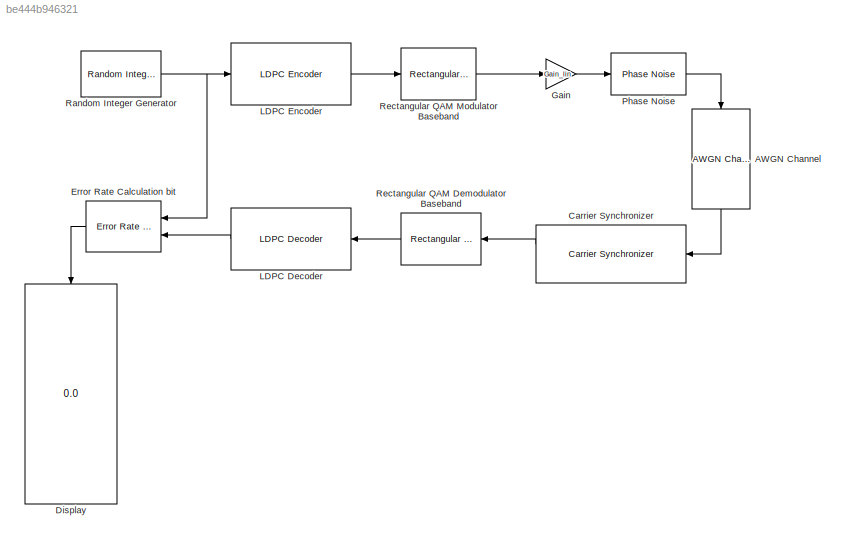
MODEL slx_be444b946321
KIND model
CONFIG AbsTol = auto
CONFIG EnableMultiTasking = off
CONFIG FixedStep = auto
CONFIG MaxStep = auto
CONFIG MinStep = auto
CONFIG RelTol = 1e-3
CONFIG SampleTimeConstraint = Unconstrained
CONFIG Solver = VariableStepAuto
CONFIG SolverName = VariableStepAuto
CONFIG StartTime = 0.0
CONFIG StopTime = 10.0
BLOCK [Reference] AWGN Channel  REF=commchan3/AWGN
Channel
  Ports = [1, 1]
  SourceBlock = commchan3/AWGN\nChannel
  SourceProductBaseCode = CM
  SourceProductName = Communications System Toolbox
  SourceType = AWGN Channel
  UserDataPersistent = on
BLOCK [Reference] Carrier Synchronizer  REF=commsync2/Carrier Synchronizer
  Ports = [1, 2]
  SourceBlock = commsync2/Carrier Synchronizer
  SourceProductBaseCode = CM
  SourceProductName = Communications System Toolbox
  SourceType = Carrier Synchronizer
BLOCK [Display] Display
  Decimation = 1
  Ports = [1]
BLOCK [Reference] Error Rate Calculation bit  REF=commsink2/Error Rate
Calculation
  Ports = [2, 1]
  SourceBlock = commsink2/Error Rate\nCalculation
  SourceProductBaseCode = CM
  SourceProductName = Communications System Toolbox
  SourceType = Error Rate Calculation
BLOCK [Gain] Gain
  Gain = Gain_lin
  OutDataTypeStr = Inherit: Inherit via internal rule
  ParamDataTypeStr = Inherit: Inherit via internal rule
  SaturateOnIntegerOverflow = off
BLOCK [Reference] LDPC Decoder  REF=commblkcod2/LDPC Decoder
  Ports = [1, 1]
  SourceBlock = commblkcod2/LDPC Decoder
  SourceProductBaseCode = CM
  SourceProductName = Communications System Toolbox
  SourceType = LDPC Decoder
BLOCK [Reference] LDPC Encoder  REF=commblkcod2/LDPC Encoder
  Ports = [1, 1]
  SourceBlock = commblkcod2/LDPC Encoder
  SourceProductBaseCode = CM
  SourceProductName = Communications System Toolbox
  SourceType = LDPC Encoder
BLOCK [Reference] Phase Noise  REF=commrflib2/Phase
Noise
  Ports = [1, 1]
  SourceBlock = commrflib2/Phase\nNoise
  SourceProductBaseCode = CM
  SourceProductName = Communications System Toolbox
  SourceType = Phase Noise
BLOCK [Reference] Random Integer Generator  REF=commrandsrc3/Random Integer
Generator
  Ports = [0, 1]
  SourceBlock = commrandsrc3/Random Integer\nGenerator
  SourceProductBaseCode = CM
  SourceProductName = Communications System Toolbox
  SourceType = Random Integer Generator
BLOCK [Reference] Rectangular QAM Demodulator Baseband  REF=commdigbbndam3/Rectangular QAM
Demodulator
Baseband
  Ports = [1, 1]
  SourceBlock = commdigbbndam3/Rectangular QAM\nDemodulator\nBaseband
  SourceProductBaseCode = CM
  SourceProductName = Communications System Toolbox
  SourceType = Rectangular QAM Demodulator Baseband
BLOCK [Reference] Rectangular QAM Modulator Baseband  REF=commdigbbndam3/Rectangular QAM
Modulator
Baseband
  Ports = [1, 1]
  SourceBlock = commdigbbndam3/Rectangular QAM\nModulator\nBaseband
  SourceProductBaseCode = CM
  SourceProductName = Communications System Toolbox
  SourceType = Rectangular QAM Modulator Baseband
LINE AWGN Channel:1 -> Carrier Synchronizer:1
LINE Carrier Synchronizer:1 -> Rectangular QAM Demodulator Baseband:1
LINE Error Rate Calculation bit:1 -> Display:1
LINE Gain:1 -> Phase Noise:1
LINE LDPC Decoder:1 -> Error Rate Calculation bit:2
LINE LDPC Encoder:1 -> Rectangular QAM Modulator Baseband:1
LINE Phase Noise:1 -> AWGN Channel:1
NET Random Integer Generator:1 -> Error Rate Calculation bit:1, LDPC Encoder:1
LINE Rectangular QAM Demodulator Baseband:1 -> LDPC Decoder:1
LINE Rectangular QAM Modulator Baseband:1 -> Gain:1
note: NET lines group one-source signal fan-out (src -> all destinations, sorted); 1:1 wires keep LINE
